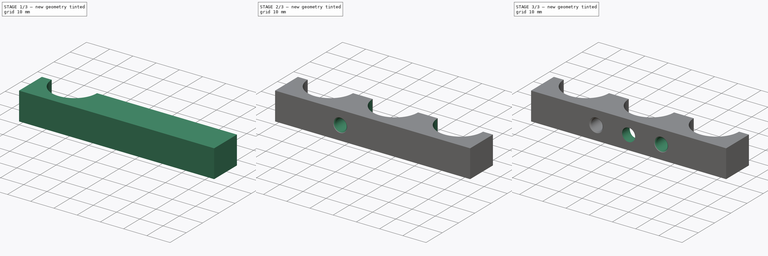
[diagram: build sequence overview — one tinted view per stage of 3, left to right]
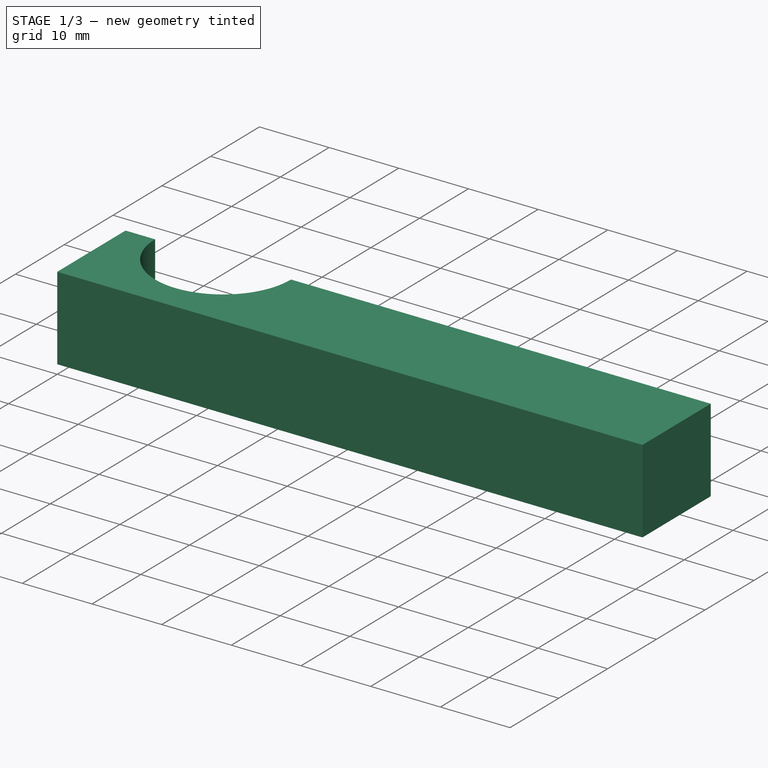
[diagram: stage 1 of 3 — iso view after this stage's code; geometry added in this stage tinted green]
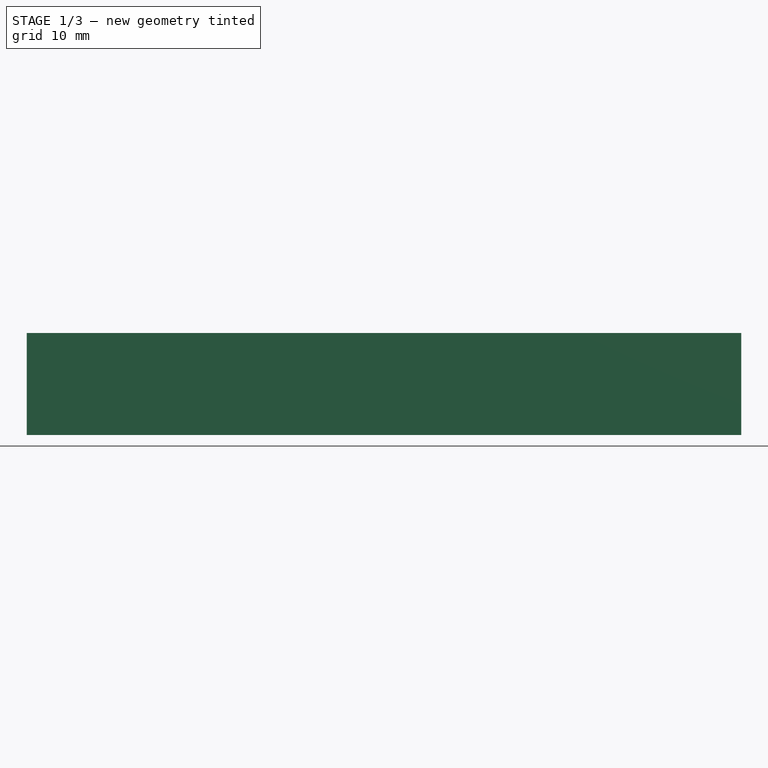
[diagram: stage 1 of 3 — front view after this stage's code; geometry added in this stage tinted green]
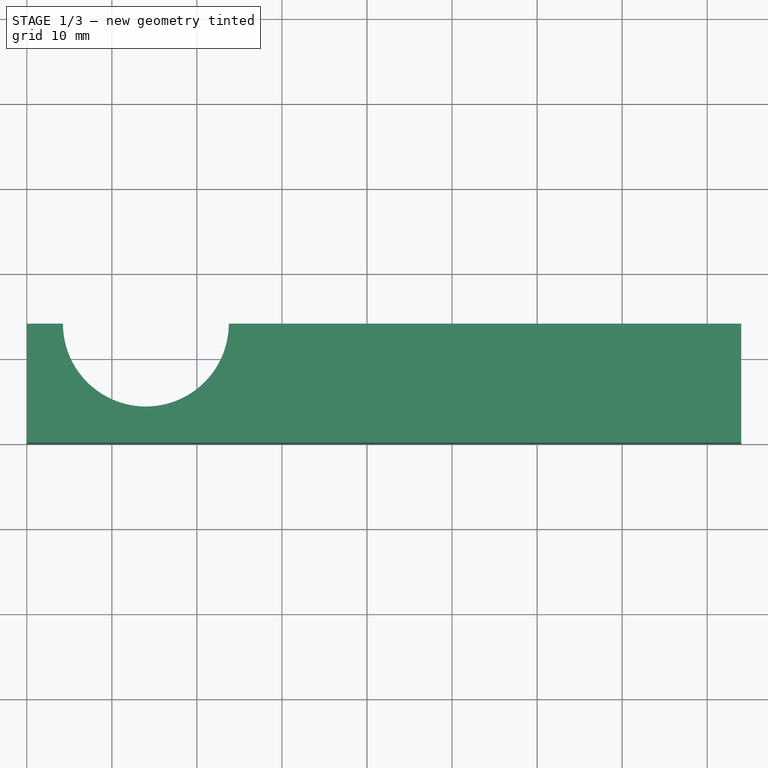
[diagram: stage 1 of 3 — top view after this stage's code; geometry added in this stage tinted green]
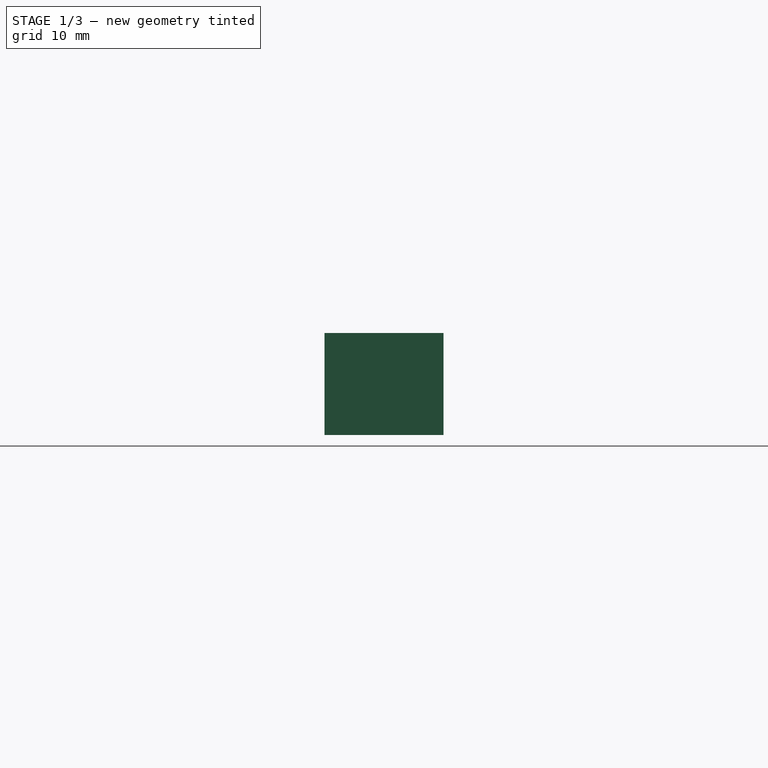
[diagram: stage 1 of 3 — right view after this stage's code; geometry added in this stage tinted green]
FCSTD DOCUMENT  (FreeCAD 1.0R39319 (Git))
Label: pipeholder_half_insert
License: All rights reserved
LicenseURL: https://en.wikipedia.org/wiki/All_rights_reserved
objects: Sketcher::SketchObject×4, PartDesign::Pocket×2, PartDesign::LinearPattern×2, Spreadsheet::Sheet×1, PartDesign::Pad×1, PartDesign::Plane×1, PartDesign::Hole×1, PartDesign::Body×1
note: 26 computed .brp shape members not serialized (recipe doc carries the construction recipe); baked Part::Feature solids carry a one-line shape summary decoded from their .brp

FEATURE [Spreadsheet::Sheet] Spreadsheet
  cells = A1='Holder Depth; B1(HolderDep)=12; C1='PipeCount; D1(PipeCnt)=3; E1='Screw diameter; F1(ScrewDia)=5; G1='Insert dia; H1(InsertDia)=5.6; A2='Holder height; B2(HolderHei)=14; C2='Pipe diameter; D2(PipeDia)=19.5; E2='Countersunk; F2(ScrewSun)=6; C3='Pipe pitch; D3(PipePitch)=28; C4='Pipe center offset; D4(PipeCentreOff)=0; A7='Calculations; C7='Pipe origin; D7(PipeCentrePosY)==HolderHei + PipeCentreOff; E7='Screw X; F7(ScrewX)==PipePitch; G7='Insert Y; H7(InsertPosY)==HolderDep / 2; A8='Holder Width; B8(HolderWid)==PipePitch * PipeCnt; E8='Screw Y; F8(ScrewY)==HolderDep / 2; G8='Insert X; H8(InsertPosX)==HolderWid / 2; E9='Screw Count; F9(ScrewCnt)==PipeCnt - 1
FEATURE [Sketcher::SketchObject] Sketch
  ArcFitTolerance = 1e-06
  AttachmentSupport = -> [XY_Plane]
  FullyConstrained = true
  MakeInternals = false
  MapMode = 5
  expr: Constraints[10] = Spreadsheet.HolderWid
  expr: Constraints[9] = Spreadsheet.HolderHei
  sketch-geometry (4):
    g0: LineSegment StartX=0 StartY=0 StartZ=0 EndX=84 EndY=0 EndZ=0
    g1: LineSegment StartX=84 StartY=0 StartZ=0 EndX=84 EndY=14 EndZ=0
    g2: LineSegment StartX=84 StartY=14 StartZ=0 EndX=0 EndY=14 EndZ=0
    g3: LineSegment StartX=0 StartY=14 StartZ=0 EndX=0 EndY=0 EndZ=0
  constraints (11):
    c: Coincident(g0,g1)
    c: Coincident(g1,g2)
    c: Coincident(g2,g3)
    c: Coincident(g3,g0)
    c: Horizontal(g0)
    c: Horizontal(g2)
    c: Vertical(g1)
    c: Vertical(g3)
    c: Coincident(g0,g-1)
    c: DistanceY(g3,g3) = 14
    c: DistanceX(g0,g0) = 84
FEATURE [PartDesign::Pad] Pad  label="MainBody"
  Direction = (0,0,1)
  Length = 12
  Length2 = 10
  Profile = -> Sketch
  ReferenceAxis = -> Sketch [N_Axis]
  Refine = true
  Suppressed = false
  Type = 0
  expr: Length = Spreadsheet.HolderDep
FEATURE [PartDesign::Plane] DatumPlane  label="Front"
  AttachmentOffset = pos=(0,0,12) rot=(0,0,1;0rad)
  AttachmentSupport = -> [XY_Plane]
  Length = 123.765
  MapMode = 5
  Placement = pos=(0,0,12) rot=(0,0,1;0rad)
  ResizeMode = 0
  Width = 64.7648
  expr: .AttachmentOffset.Base.z = Spreadsheet.HolderDep
FEATURE [Sketcher::SketchObject] Sketch001
  ArcFitTolerance = 1e-06
  AttachmentSupport = -> [DatumPlane]
  FullyConstrained = true
  MakeInternals = false
  MapMode = 5
  Placement = pos=(0,0,12) rot=(0,0,1;0rad)
  expr: Constraints[0] = Spreadsheet.PipeDia
  expr: Constraints[1] = Spreadsheet.PipePitch / 2
  expr: Constraints[2] = Spreadsheet.PipeCentrePosY
  sketch-geometry (1):
    g0: Circle CenterX=14 CenterY=14 CenterZ=0 NormalX=0 NormalY=0 NormalZ=1 AngleXU=0 Radius=9.75
  constraints (3):
    c: Diameter(g0) = 19.5
    c: DistanceX(g-1,g0) = 14
    c: DistanceY(g-1,g0) = 14
FEATURE [PartDesign::Pocket] Pocket  label="PipeCut"
  BaseFeature = -> Pad
  Direction = (0,0,-1)
  Length = 5
  Length2 = 5
  Profile = -> Sketch001
  ReferenceAxis = -> Sketch001 [N_Axis]
  Refine = true
  Suppressed = false
  Type = 1
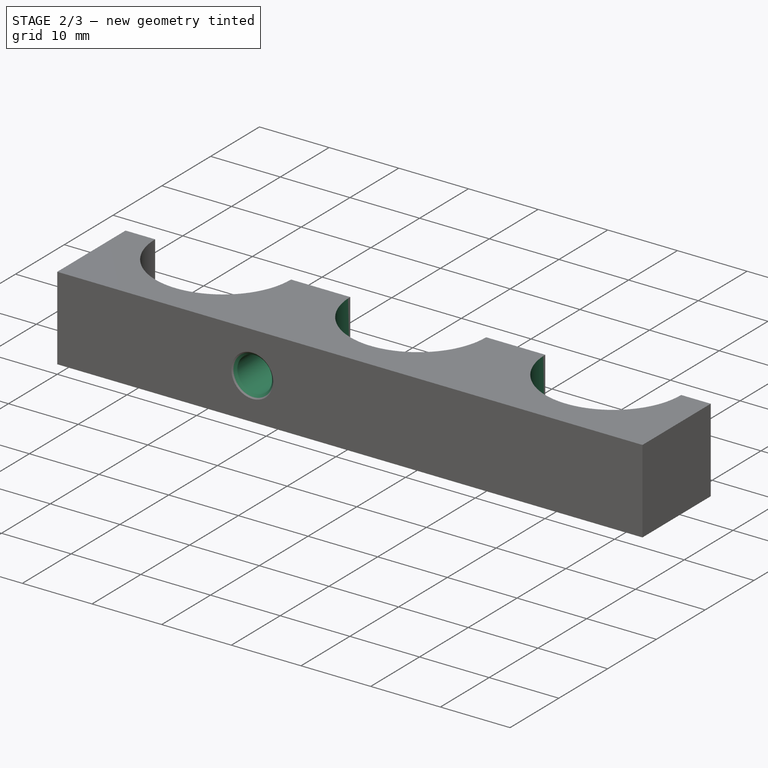
[diagram: stage 2 of 3 — iso view after this stage's code; geometry added in this stage tinted green]
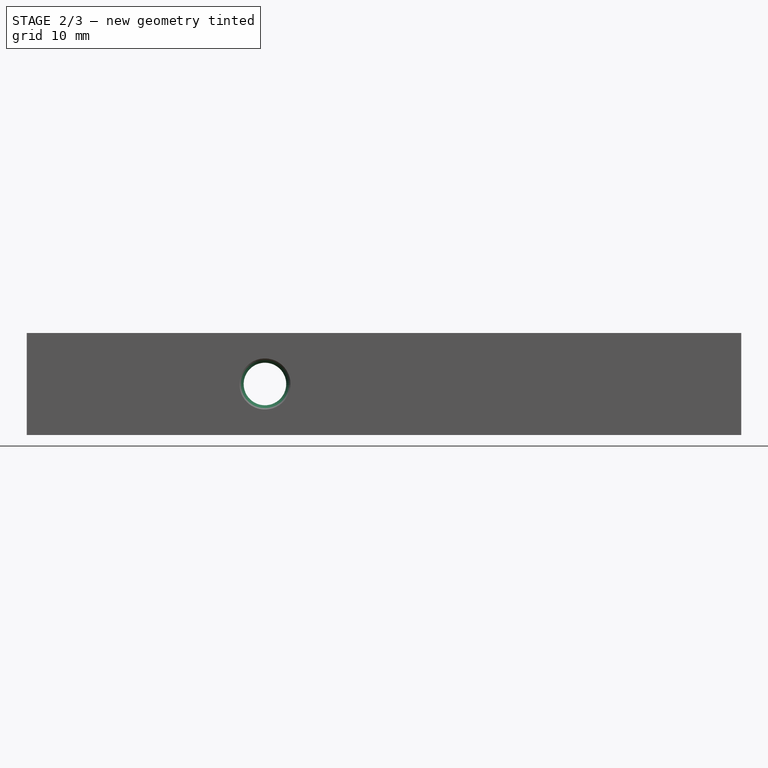
[diagram: stage 2 of 3 — front view after this stage's code; geometry added in this stage tinted green]
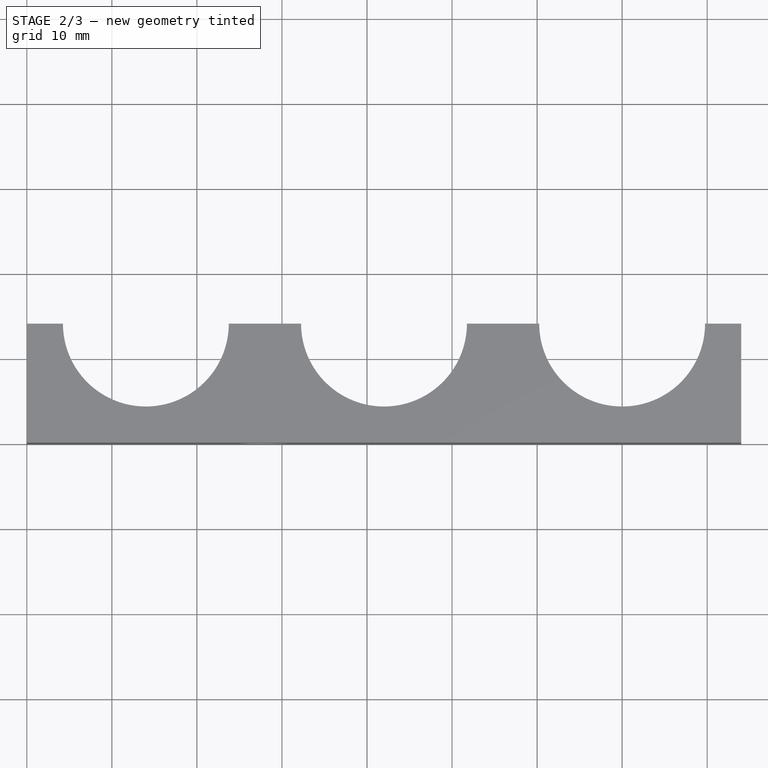
[diagram: stage 2 of 3 — top view after this stage's code; geometry added in this stage tinted green]
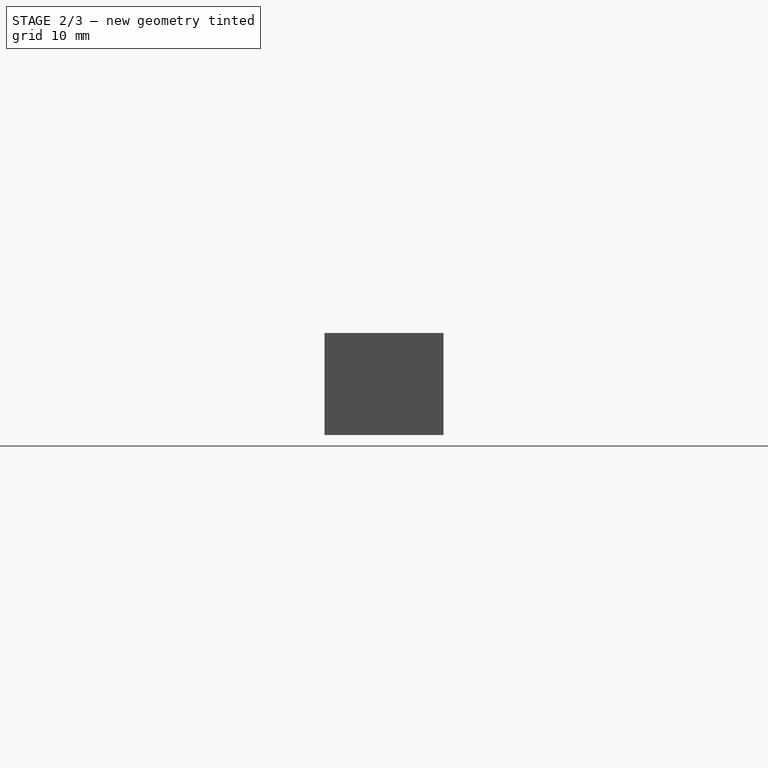
[diagram: stage 2 of 3 — right view after this stage's code; geometry added in this stage tinted green]
FEATURE [Sketcher::SketchObject] Sketch002
  ArcFitTolerance = 1e-06
  AttachmentSupport = -> [XZ_Plane]
  FullyConstrained = true
  MakeInternals = false
  MapMode = 5
  Placement = pos=(0,0,0) rot=(1,0,0;1.5708rad)
  expr: Constraints[0] = Spreadsheet.ScrewDia
  expr: Constraints[1] = <<Spreadsheet>>.ScrewX
  expr: Constraints[2] = Spreadsheet.ScrewY
  sketch-geometry (1):
    g0: Circle CenterX=28 CenterY=6 CenterZ=0 NormalX=0 NormalY=0 NormalZ=1 AngleXU=0 Radius=2.5
  constraints (3):
    c: Diameter(g0) = 5
    c: DistanceX(g-1,g0) = 28
    c: DistanceY(g-1,g0) = 6
FEATURE [PartDesign::LinearPattern] LinearPattern001  label="PipeCuts"
  BaseFeature = -> Pocket
  Direction = -> Sketch001 [H_Axis]
  Length = 56
  Mode = 1
  Occurrences = 3
  Offset = 28
  Originals = -> [Pocket]
  Refine = true
  Suppressed = false
  TransformMode = 0
  expr: Length = Spreadsheet.PipePitch
  expr: Occurrences = Spreadsheet.PipeCnt
  expr: Offset = Spreadsheet.PipePitch
FEATURE [PartDesign::Hole] Hole  label="ScrewHole"
  BaseFeature = -> LinearPattern001
  CustomThreadClearance = 0
  Depth = 85.7013
  DepthType = 1
  Diameter = 5
  DrillForDepth = false
  DrillPoint = 1
  DrillPointAngle = 118
  HoleCutCountersinkAngle = 90
  HoleCutCustomValues = false
  HoleCutDepth = 0
  HoleCutDiameter = 6
  HoleCutType = 2
  ModelThread = false
  Profile = -> Sketch002
  Refine = true
  Suppressed = false
  Tapered = false
  TaperedAngle = 90
  ThreadClass = 0
  ThreadDepth = 85.7013
  ThreadDepthType = 0
  ThreadDirection = 0
  ThreadFit = 0
  ThreadSize = 0
  ThreadType = 0
  Threaded = false
  UseCustomThreadClearance = false
  expr: Diameter = Spreadsheet.ScrewDia
  expr: HoleCutDiameter = Spreadsheet.ScrewSun
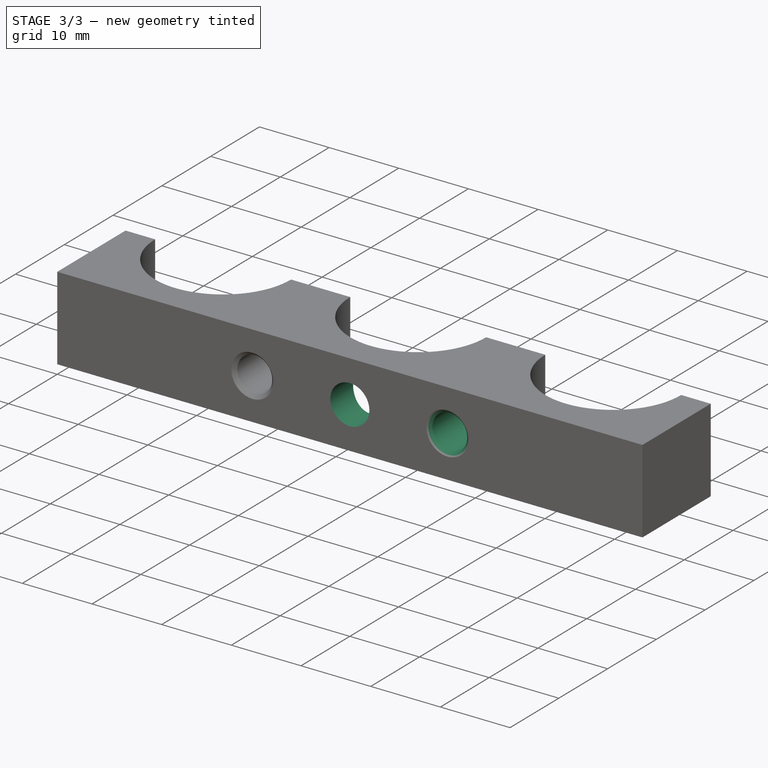
[diagram: stage 3 of 3 — iso view after this stage's code; geometry added in this stage tinted green]
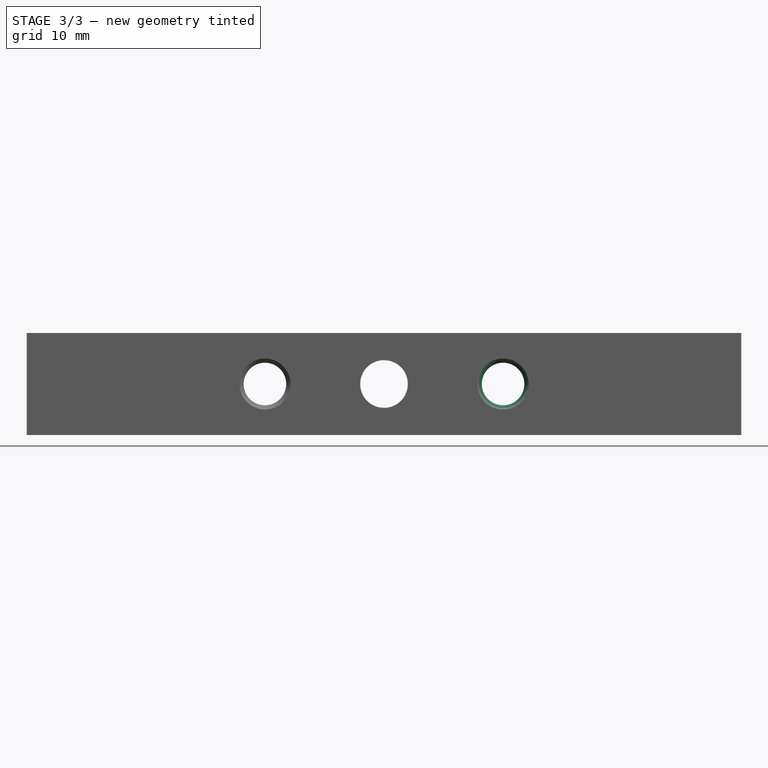
[diagram: stage 3 of 3 — front view after this stage's code; geometry added in this stage tinted green]
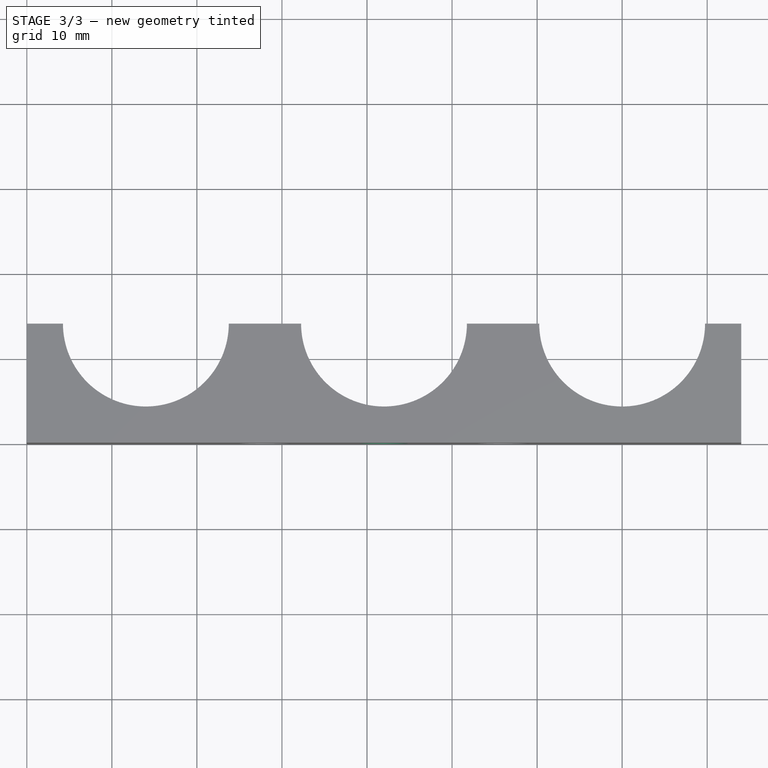
[diagram: stage 3 of 3 — top view after this stage's code; geometry added in this stage tinted green]
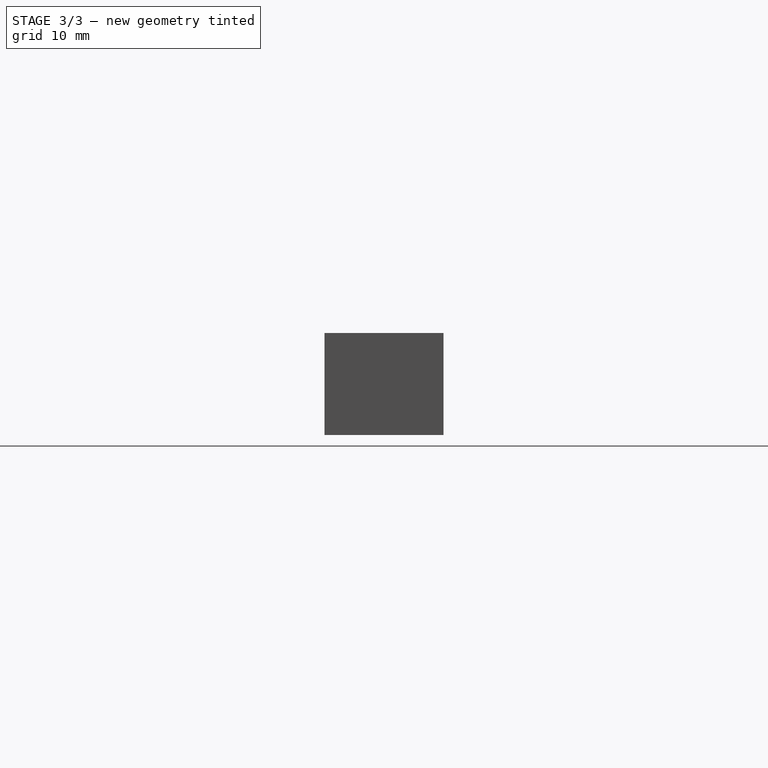
[diagram: stage 3 of 3 — right view after this stage's code; geometry added in this stage tinted green]
FEATURE [PartDesign::LinearPattern] LinearPattern  label="ScrewHoles"
  BaseFeature = -> Hole
  Direction = -> X_Axis
  Length = 28
  Mode = 1
  Occurrences = 2
  Offset = 28
  Originals = -> [Hole]
  Refine = true
  Suppressed = false
  TransformMode = 0
  expr: Length = Spreadsheet.PipePitch
  expr: Occurrences = Spreadsheet.ScrewCnt
  expr: Offset = Spreadsheet.PipePitch
FEATURE [Sketcher::SketchObject] Sketch003
  ArcFitTolerance = 1e-06
  AttachmentSupport = -> [XZ_Plane]
  FullyConstrained = true
  MakeInternals = false
  MapMode = 5
  Placement = pos=(0,0,0) rot=(1,0,0;1.5708rad)
  expr: Constraints[0] = Spreadsheet.InsertDia
  expr: Constraints[1] = Spreadsheet.InsertPosY
  expr: Constraints[2] = Spreadsheet.InsertPosX
  sketch-geometry (1):
    g0: Circle CenterX=42 CenterY=6 CenterZ=0 NormalX=0 NormalY=0 NormalZ=1 AngleXU=0 Radius=2.8
  constraints (3):
    c: Diameter(g0) = 5.6
    c: DistanceY(g-1,g0) = 6
    c: DistanceX(g-1,g0) = 42
FEATURE [PartDesign::Pocket] Pocket001  label="InsertHole"
  BaseFeature = -> LinearPattern
  Direction = (0,1,-2e-16)
  Length = 5
  Length2 = 5
  Profile = -> Sketch003
  ReferenceAxis = -> Sketch003 [N_Axis]
  Refine = true
  Suppressed = false
  Type = 1
FEATURE [PartDesign::Body] Body
  AllowCompound = false
  Group = -> [Sketch,Pad,DatumPlane,Sketch001,Pocket,LinearPattern001,Sketch002,Hole,LinearPattern,Sketch003,Pocket001]
  Origin = -> Origin
  Tip = -> Pocket001
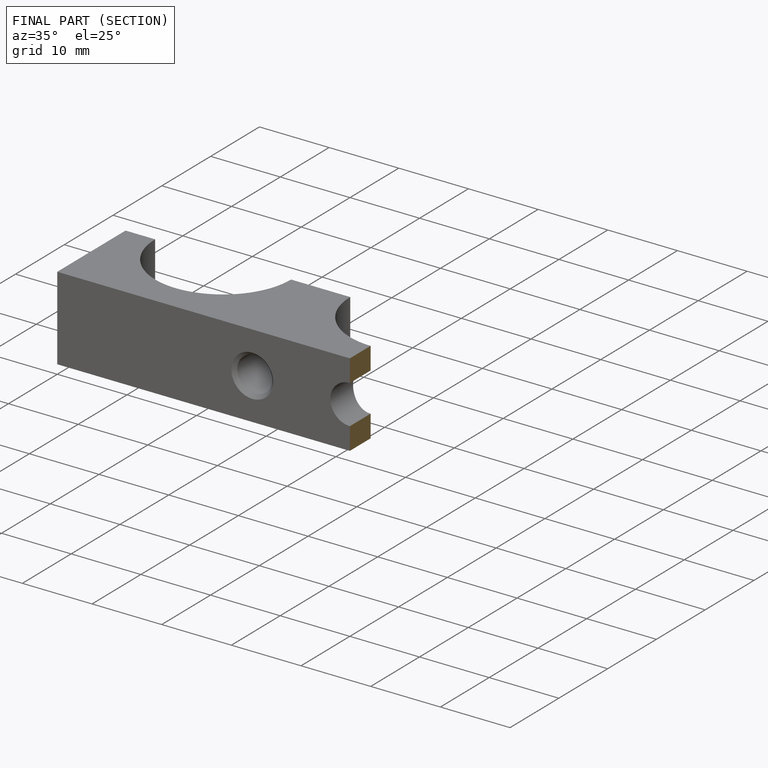
[diagram: finished part — half-section view (interior)]
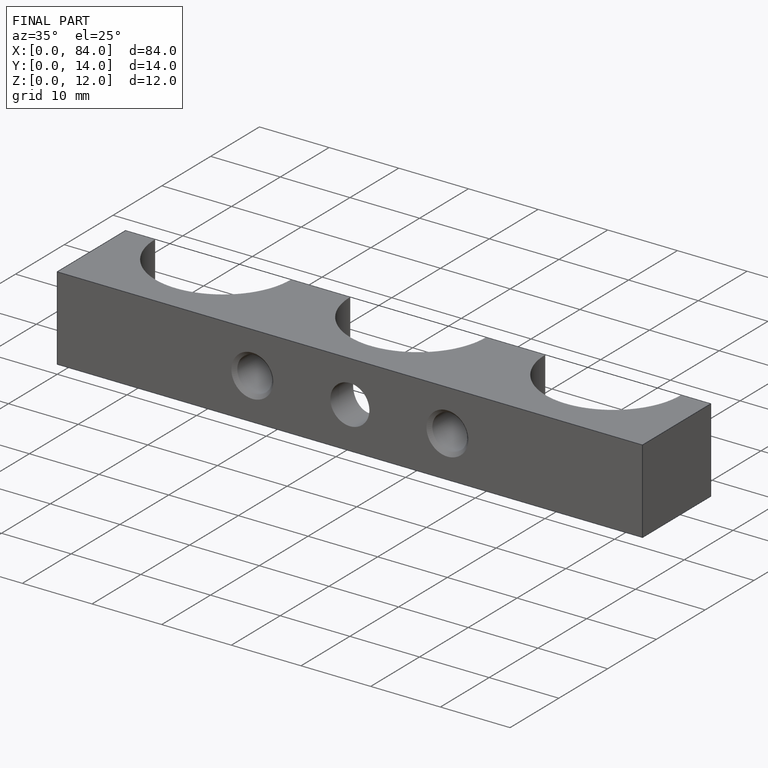
[diagram: finished part — iso view with bounding-box wireframe]
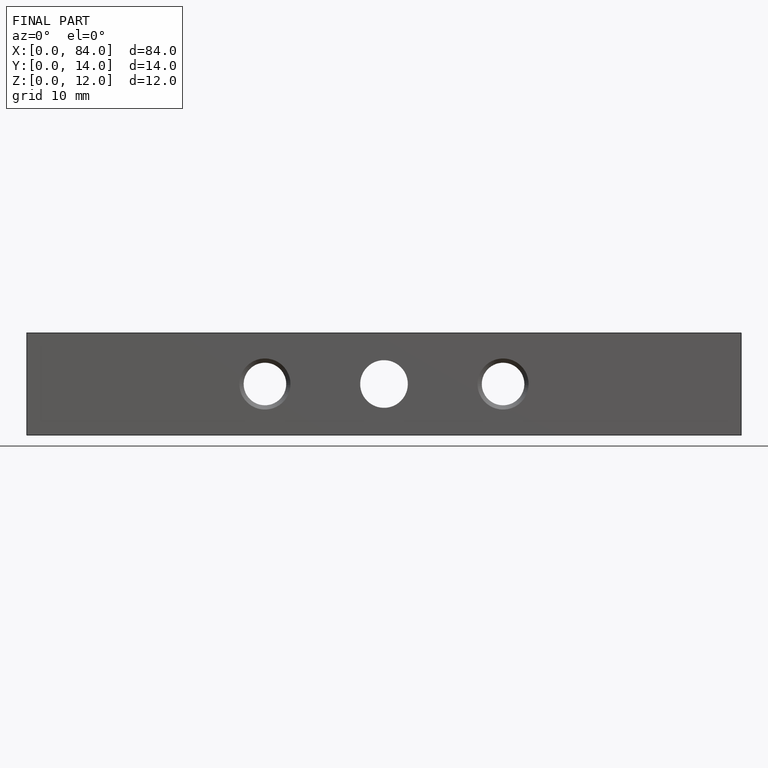
[diagram: finished part — front view with bounding-box wireframe]
